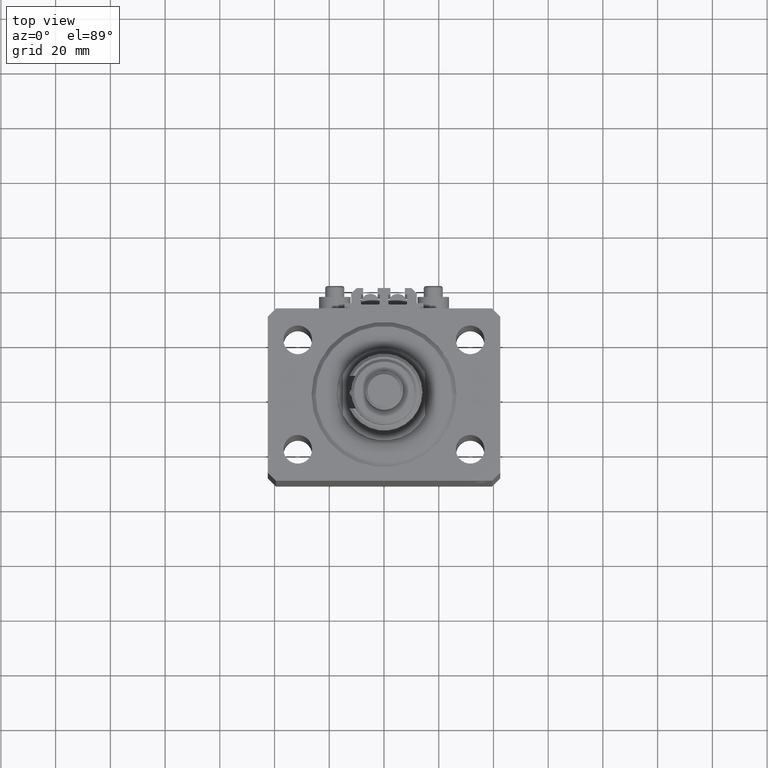
[diagram: clean part render]
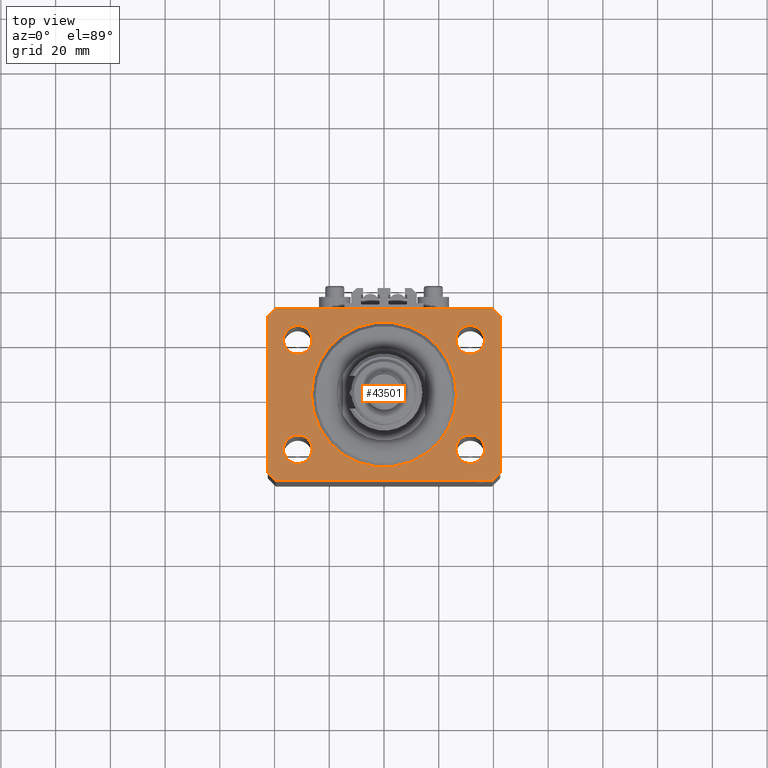
[diagram: same view with one face highlighted and labeled with its STEP entity id]
A machine part, top view. The second image highlights one B-rep face of the part: STEP entity #43501.
In plain terms, the highlighted planar face has unit normal (0, 0, 1).
Its self-contained STEP definition (entity closure, byte-faithful):
#469 = PLANE ( 'NONE',  #28928 ) ;
#509 = AXIS2_PLACEMENT_3D ( 'NONE', #33881, #49876, #38005 ) ;
#707 = CIRCLE ( 'NONE', #8908, 5.250000000000000888 ) ;
#1082 = DIRECTION ( 'NONE',  ( 0.000000000000000000, 0.000000000000000000, 1.000000000000000000 ) ) ;
#1422 = CARTESIAN_POINT ( 'NONE',  ( 0.000000000000000000, 0.000000000000000000, 0.000000000000000000 ) ) ;
#1459 = EDGE_CURVE ( 'NONE', #47472, #21391, #35658, .T. ) ;
#1492 = FACE_BOUND ( 'NONE', #1618, .T. ) ;
#1618 = EDGE_LOOP ( 'NONE', ( #7515, #24856 ) ) ;
#1767 = AXIS2_PLACEMENT_3D ( 'NONE', #41224, #13160, #21141 ) ;
#2049 = LINE ( 'NONE', #6419, #5353 ) ;
#2435 = DIRECTION ( 'NONE',  ( 0.000000000000000000, 0.000000000000000000, 1.000000000000000000 ) ) ;
#2483 = DIRECTION ( 'NONE',  ( 1.000000000000000000, 0.000000000000000000, -0.000000000000000000 ) ) ;
#3135 = DIRECTION ( 'NONE',  ( 1.000000000000000000, 0.000000000000000000, 0.000000000000000000 ) ) ;
#3246 = CARTESIAN_POINT ( 'NONE',  ( 26.24999999999999645, -20.00000000000000355, 0.000000000000000000 ) ) ;
#3491 = AXIS2_PLACEMENT_3D ( 'NONE', #33611, #2435, #25399 ) ;
#3770 = CARTESIAN_POINT ( 'NONE',  ( -39.50000000000000711, 31.50000000000000000, 0.000000000000000000 ) ) ;
#4134 = CARTESIAN_POINT ( 'NONE',  ( -42.50000000000000000, -28.50000000000000000, 0.000000000000000000 ) ) ;
#4415 = CARTESIAN_POINT ( 'NONE',  ( -36.74999999999999289, -20.00000000000000355, 0.000000000000000000 ) ) ;
#4575 = EDGE_LOOP ( 'NONE', ( #50980, #38531, #20391, #22932, #5771, #31854, #50514, #19064 ) ) ;
#4765 = CARTESIAN_POINT ( 'NONE',  ( 42.50000000000051870, 28.49999999999995381, 0.000000000000000000 ) ) ;
#5179 = ORIENTED_EDGE ( 'NONE', *, *, #9746, .F. ) ;
#5256 = CARTESIAN_POINT ( 'NONE',  ( 42.50000000000000711, -28.50000000000000355, 0.000000000000000000 ) ) ;
#5353 = VECTOR ( 'NONE', #45604, 1000.000000000000000 ) ;
#5771 = ORIENTED_EDGE ( 'NONE', *, *, #1459, .T. ) ;
#5811 = VECTOR ( 'NONE', #36364, 1000.000000000000000 ) ;
#5997 = CARTESIAN_POINT ( 'NONE',  ( -39.50000000000000711, 31.50000000000000000, 0.000000000000000000 ) ) ;
#6260 = CIRCLE ( 'NONE', #509, 5.249999999999997335 ) ;
#6419 = CARTESIAN_POINT ( 'NONE',  ( 39.50000000000000711, -31.50000000000000000, 0.000000000000000000 ) ) ;
#6479 = CARTESIAN_POINT ( 'NONE',  ( 31.49999999999999289, -20.00000000000000355, 0.000000000000000000 ) ) ;
#7105 = VERTEX_POINT ( 'NONE', #4415 ) ;
#7279 = AXIS2_PLACEMENT_3D ( 'NONE', #44603, #9292, #31967 ) ;
#7515 = ORIENTED_EDGE ( 'NONE', *, *, #40061, .F. ) ;
#7575 = VERTEX_POINT ( 'NONE', #3246 ) ;
#7661 = DIRECTION ( 'NONE',  ( 1.000000000000000000, 0.000000000000000000, 0.000000000000000000 ) ) ;
#7741 = EDGE_CURVE ( 'NONE', #20601, #7970, #40128, .T. ) ;
#7970 = VERTEX_POINT ( 'NONE', #39501 ) ;
#8027 = AXIS2_PLACEMENT_3D ( 'NONE', #1422, #16358, #44961 ) ;
#8645 = DIRECTION ( 'NONE',  ( -0.7071067811865356934, 0.7071067811865594521, 0.000000000000000000 ) ) ;
#8803 = LINE ( 'NONE', #47984, #5811 ) ;
#8873 = AXIS2_PLACEMENT_3D ( 'NONE', #48119, #18373, #11147 ) ;
#8908 = AXIS2_PLACEMENT_3D ( 'NONE', #50964, #18993, #7661 ) ;
#9122 = DIRECTION ( 'NONE',  ( -1.000000000000000000, 0.000000000000000000, 0.000000000000000000 ) ) ;
#9268 = CARTESIAN_POINT ( 'NONE',  ( 36.75000000000000000, 19.99999999999999289, 0.000000000000000000 ) ) ;
#9292 = DIRECTION ( 'NONE',  ( 0.000000000000000000, 0.000000000000000000, 1.000000000000000000 ) ) ;
#9407 = CARTESIAN_POINT ( 'NONE',  ( -39.50000000000000711, -31.50000000000000000, 0.000000000000000000 ) ) ;
#9728 = VERTEX_POINT ( 'NONE', #14729 ) ;
#9746 = EDGE_CURVE ( 'NONE', #12959, #7575, #49256, .T. ) ;
#10038 = EDGE_CURVE ( 'NONE', #35308, #27030, #17973, .T. ) ;
#10662 = EDGE_LOOP ( 'NONE', ( #45117, #13115 ) ) ;
#11147 = DIRECTION ( 'NONE',  ( 1.000000000000000000, 0.000000000000000000, 0.000000000000000000 ) ) ;
#11772 = CARTESIAN_POINT ( 'NONE',  ( 0.000000000000000000, 0.000000000000000000, 0.000000000000000000 ) ) ;
#12959 = VERTEX_POINT ( 'NONE', #35438 ) ;
#13115 = ORIENTED_EDGE ( 'NONE', *, *, #15477, .F. ) ;
#13160 = DIRECTION ( 'NONE',  ( 0.000000000000000000, 0.000000000000000000, 1.000000000000000000 ) ) ;
#13584 = CARTESIAN_POINT ( 'NONE',  ( -26.24999999999999289, -20.00000000000000355, 0.000000000000000000 ) ) ;
#13777 = ORIENTED_EDGE ( 'NONE', *, *, #30960, .F. ) ;
#14729 = CARTESIAN_POINT ( 'NONE',  ( -42.50000000000000000, 28.50000000000000000, 0.000000000000000000 ) ) ;
#15094 = EDGE_CURVE ( 'NONE', #9728, #29385, #8803, .T. ) ;
#15477 = EDGE_CURVE ( 'NONE', #35404, #25794, #6260, .T. ) ;
#16068 = CARTESIAN_POINT ( 'NONE',  ( -39.50000000000000711, -31.50000000000000000, 0.000000000000000000 ) ) ;
#16172 = CARTESIAN_POINT ( 'NONE',  ( 0.000000000000000000, 0.000000000000000000, 0.000000000000000000 ) ) ;
#16358 = DIRECTION ( 'NONE',  ( 0.000000000000000000, 0.000000000000000000, 1.000000000000000000 ) ) ;
#16585 = LINE ( 'NONE', #36432, #49336 ) ;
#16709 = ORIENTED_EDGE ( 'NONE', *, *, #38617, .F. ) ;
#16976 = EDGE_LOOP ( 'NONE', ( #13777, #17656 ) ) ;
#17152 = EDGE_CURVE ( 'NONE', #31485, #9728, #39078, .T. ) ;
#17394 = CIRCLE ( 'NONE', #40456, 5.250000000000000888 ) ;
#17656 = ORIENTED_EDGE ( 'NONE', *, *, #41864, .F. ) ;
#17973 = CIRCLE ( 'NONE', #7279, 5.250000000000000888 ) ;
#18373 = DIRECTION ( 'NONE',  ( 0.000000000000000000, 0.000000000000000000, 1.000000000000000000 ) ) ;
#18472 = DIRECTION ( 'NONE',  ( -0.7071067811865471286, -0.7071067811865479058, 0.000000000000000000 ) ) ;
#18842 = CARTESIAN_POINT ( 'NONE',  ( -42.50000000000000000, -28.50000000000000000, 0.000000000000000000 ) ) ;
#18993 = DIRECTION ( 'NONE',  ( 0.000000000000000000, 0.000000000000000000, 1.000000000000000000 ) ) ;
#19064 = ORIENTED_EDGE ( 'NONE', *, *, #47363, .T. ) ;
#20051 = FACE_BOUND ( 'NONE', #37305, .T. ) ;
#20391 = ORIENTED_EDGE ( 'NONE', *, *, #15094, .T. ) ;
#20526 = CARTESIAN_POINT ( 'NONE',  ( 39.50000000000056843, 31.50000000000000000, 0.000000000000000000 ) ) ;
#20601 = VERTEX_POINT ( 'NONE', #24986 ) ;
#21141 = DIRECTION ( 'NONE',  ( 1.000000000000000000, 0.000000000000000000, 0.000000000000000000 ) ) ;
#21286 = DIRECTION ( 'NONE',  ( 1.000000000000000000, 0.000000000000000000, 0.000000000000000000 ) ) ;
#21391 = VERTEX_POINT ( 'NONE', #45259 ) ;
#21412 = DIRECTION ( 'NONE',  ( 1.000000000000000000, 0.000000000000000000, 0.000000000000000000 ) ) ;
#21664 = CARTESIAN_POINT ( 'NONE',  ( -31.49999999999999289, -20.00000000000000355, 0.000000000000000000 ) ) ;
#21694 = DIRECTION ( 'NONE',  ( 0.000000000000000000, 0.000000000000000000, 1.000000000000000000 ) ) ;
#22086 = AXIS2_PLACEMENT_3D ( 'NONE', #6479, #21694, #3135 ) ;
#22461 = ORIENTED_EDGE ( 'NONE', *, *, #44501, .F. ) ;
#22932 = ORIENTED_EDGE ( 'NONE', *, *, #23087, .T. ) ;
#23087 = EDGE_CURVE ( 'NONE', #29385, #47472, #30681, .T. ) ;
#24337 = VECTOR ( 'NONE', #18472, 1000.000000000000000 ) ;
#24856 = ORIENTED_EDGE ( 'NONE', *, *, #7741, .F. ) ;
#24879 = CIRCLE ( 'NONE', #37175, 26.50000000000000355 ) ;
#24909 = CIRCLE ( 'NONE', #3491, 5.249999999999997335 ) ;
#24986 = CARTESIAN_POINT ( 'NONE',  ( -26.50000000000000355, 3.245314017740486554E-15, 0.000000000000000000 ) ) ;
#25318 = EDGE_CURVE ( 'NONE', #25794, #35404, #39297, .T. ) ;
#25399 = DIRECTION ( 'NONE',  ( 1.000000000000000000, 0.000000000000000000, 0.000000000000000000 ) ) ;
#25794 = VERTEX_POINT ( 'NONE', #9268 ) ;
#26005 = EDGE_CURVE ( 'NONE', #42617, #32579, #35249, .T. ) ;
#27030 = VERTEX_POINT ( 'NONE', #50655 ) ;
#27332 = VECTOR ( 'NONE', #42292, 1000.000000000000000 ) ;
#27485 = DIRECTION ( 'NONE',  ( 0.000000000000000000, 0.000000000000000000, 1.000000000000000000 ) ) ;
#28928 = AXIS2_PLACEMENT_3D ( 'NONE', #16172, #36015, #2483 ) ;
#29385 = VERTEX_POINT ( 'NONE', #4134 ) ;
#30229 = VECTOR ( 'NONE', #32901, 1000.000000000000000 ) ;
#30681 = LINE ( 'NONE', #18842, #27332 ) ;
#30960 = EDGE_CURVE ( 'NONE', #48433, #7105, #707, .T. ) ;
#31485 = VERTEX_POINT ( 'NONE', #5997 ) ;
#31786 = DIRECTION ( 'NONE',  ( 1.000000000000000000, 0.000000000000000000, 0.000000000000000000 ) ) ;
#31854 = ORIENTED_EDGE ( 'NONE', *, *, #50862, .T. ) ;
#31967 = DIRECTION ( 'NONE',  ( 1.000000000000000000, 0.000000000000000000, 0.000000000000000000 ) ) ;
#32579 = VERTEX_POINT ( 'NONE', #50595 ) ;
#32900 = EDGE_CURVE ( 'NONE', #33380, #31485, #16585, .T. ) ;
#32901 = DIRECTION ( 'NONE',  ( 8.886653596232072440E-15, 1.000000000000000000, 0.000000000000000000 ) ) ;
#33380 = VERTEX_POINT ( 'NONE', #20526 ) ;
#33611 = CARTESIAN_POINT ( 'NONE',  ( 31.49999999999999289, -20.00000000000000355, 0.000000000000000000 ) ) ;
#33881 = CARTESIAN_POINT ( 'NONE',  ( 31.50000000000000000, 19.99999999999999289, 0.000000000000000000 ) ) ;
#35249 = LINE ( 'NONE', #43995, #30229 ) ;
#35308 = VERTEX_POINT ( 'NONE', #43004 ) ;
#35404 = VERTEX_POINT ( 'NONE', #40386 ) ;
#35438 = CARTESIAN_POINT ( 'NONE',  ( 36.74999999999999289, -20.00000000000000355, 0.000000000000000000 ) ) ;
#35658 = LINE ( 'NONE', #16068, #50598 ) ;
#35664 = VECTOR ( 'NONE', #8645, 1000.000000000000114 ) ;
#35759 = FACE_BOUND ( 'NONE', #47426, .T. ) ;
#36015 = DIRECTION ( 'NONE',  ( 0.000000000000000000, 0.000000000000000000, 1.000000000000000000 ) ) ;
#36311 = ORIENTED_EDGE ( 'NONE', *, *, #10038, .F. ) ;
#36364 = DIRECTION ( 'NONE',  ( 0.000000000000000000, -1.000000000000000000, 0.000000000000000000 ) ) ;
#36432 = CARTESIAN_POINT ( 'NONE',  ( 39.50000000000056843, 31.50000000000000000, 0.000000000000000000 ) ) ;
#37175 = AXIS2_PLACEMENT_3D ( 'NONE', #11772, #27485, #21286 ) ;
#37305 = EDGE_LOOP ( 'NONE', ( #5179, #22461 ) ) ;
#38005 = DIRECTION ( 'NONE',  ( 1.000000000000000000, 0.000000000000000000, 0.000000000000000000 ) ) ;
#38531 = ORIENTED_EDGE ( 'NONE', *, *, #17152, .T. ) ;
#38617 = EDGE_CURVE ( 'NONE', #27030, #35308, #38805, .T. ) ;
#38805 = CIRCLE ( 'NONE', #1767, 5.250000000000000888 ) ;
#39078 = LINE ( 'NONE', #3770, #24337 ) ;
#39297 = CIRCLE ( 'NONE', #8873, 5.249999999999997335 ) ;
#39501 = CARTESIAN_POINT ( 'NONE',  ( 26.50000000000000355, 0.000000000000000000, 0.000000000000000000 ) ) ;
#40061 = EDGE_CURVE ( 'NONE', #7970, #20601, #24879, .T. ) ;
#40128 = CIRCLE ( 'NONE', #8027, 26.50000000000000355 ) ;
#40386 = CARTESIAN_POINT ( 'NONE',  ( 26.25000000000000355, 19.99999999999999289, 0.000000000000000000 ) ) ;
#40456 = AXIS2_PLACEMENT_3D ( 'NONE', #21664, #1082, #21412 ) ;
#40902 = FACE_OUTER_BOUND ( 'NONE', #4575, .T. ) ;
#41224 = CARTESIAN_POINT ( 'NONE',  ( -31.50000000000000000, 19.99999999999999645, 0.000000000000000000 ) ) ;
#41864 = EDGE_CURVE ( 'NONE', #7105, #48433, #17394, .T. ) ;
#42292 = DIRECTION ( 'NONE',  ( 0.7071067811865471286, -0.7071067811865479058, 0.000000000000000000 ) ) ;
#42617 = VERTEX_POINT ( 'NONE', #5256 ) ;
#43004 = CARTESIAN_POINT ( 'NONE',  ( -36.75000000000000000, 19.99999999999999645, 0.000000000000000000 ) ) ;
#43501 = ADVANCED_FACE ( 'NONE', ( #1492, #48655, #20051, #44780, #35759, #40902 ), #469, .T. ) ;
#43995 = CARTESIAN_POINT ( 'NONE',  ( 42.50000000000000711, -28.50000000000000355, 0.000000000000000000 ) ) ;
#44200 = LINE ( 'NONE', #4765, #35664 ) ;
#44501 = EDGE_CURVE ( 'NONE', #7575, #12959, #24909, .T. ) ;
#44603 = CARTESIAN_POINT ( 'NONE',  ( -31.50000000000000000, 19.99999999999999645, 0.000000000000000000 ) ) ;
#44780 = FACE_BOUND ( 'NONE', #10662, .T. ) ;
#44961 = DIRECTION ( 'NONE',  ( 1.000000000000000000, 0.000000000000000000, 0.000000000000000000 ) ) ;
#45117 = ORIENTED_EDGE ( 'NONE', *, *, #25318, .F. ) ;
#45259 = CARTESIAN_POINT ( 'NONE',  ( 39.50000000000000711, -31.50000000000000000, 0.000000000000000000 ) ) ;
#45604 = DIRECTION ( 'NONE',  ( 0.7071067811865483499, 0.7071067811865466846, 0.000000000000000000 ) ) ;
#47363 = EDGE_CURVE ( 'NONE', #32579, #33380, #44200, .T. ) ;
#47426 = EDGE_LOOP ( 'NONE', ( #16709, #36311 ) ) ;
#47472 = VERTEX_POINT ( 'NONE', #9407 ) ;
#47984 = CARTESIAN_POINT ( 'NONE',  ( -42.50000000000000000, 28.50000000000000000, 0.000000000000000000 ) ) ;
#48119 = CARTESIAN_POINT ( 'NONE',  ( 31.50000000000000000, 19.99999999999999289, 0.000000000000000000 ) ) ;
#48433 = VERTEX_POINT ( 'NONE', #13584 ) ;
#48655 = FACE_BOUND ( 'NONE', #16976, .T. ) ;
#49256 = CIRCLE ( 'NONE', #22086, 5.249999999999997335 ) ;
#49336 = VECTOR ( 'NONE', #9122, 1000.000000000000000 ) ;
#49876 = DIRECTION ( 'NONE',  ( 0.000000000000000000, 0.000000000000000000, 1.000000000000000000 ) ) ;
#50514 = ORIENTED_EDGE ( 'NONE', *, *, #26005, .T. ) ;
#50595 = CARTESIAN_POINT ( 'NONE',  ( 42.50000000000051870, 28.49999999999995381, 0.000000000000000000 ) ) ;
#50598 = VECTOR ( 'NONE', #31786, 1000.000000000000000 ) ;
#50655 = CARTESIAN_POINT ( 'NONE',  ( -26.25000000000000000, 19.99999999999999645, 0.000000000000000000 ) ) ;
#50862 = EDGE_CURVE ( 'NONE', #21391, #42617, #2049, .T. ) ;
#50964 = CARTESIAN_POINT ( 'NONE',  ( -31.49999999999999289, -20.00000000000000355, 0.000000000000000000 ) ) ;
#50980 = ORIENTED_EDGE ( 'NONE', *, *, #32900, .T. ) ;